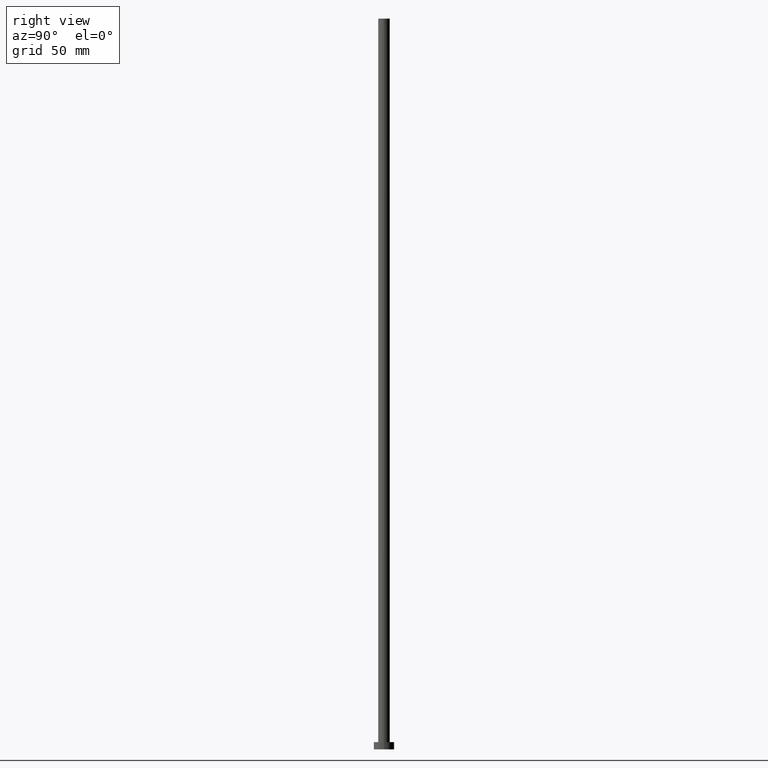
[diagram: clean part render]
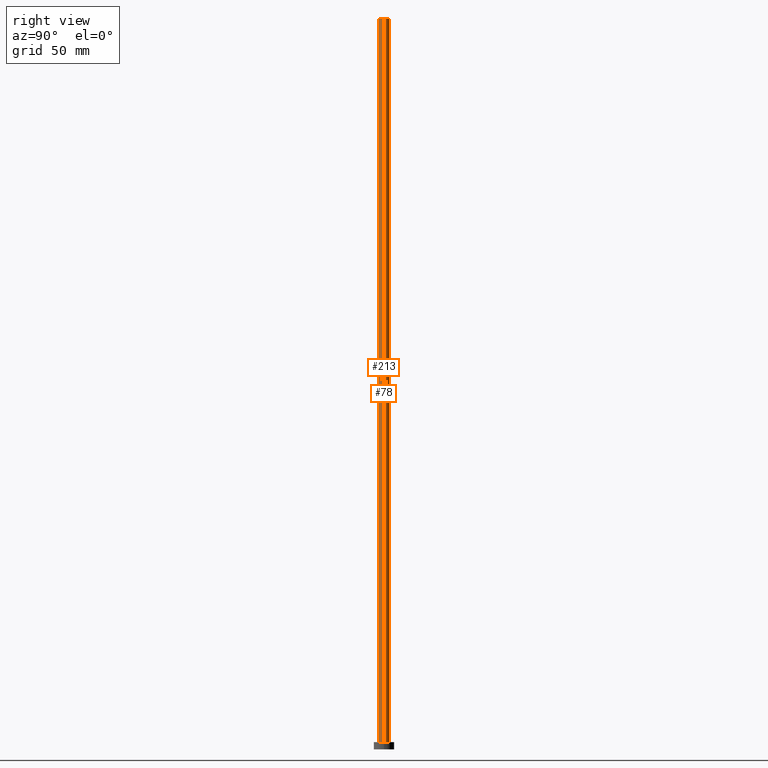
[diagram: same view with one multi-face feature highlighted, each face labeled with its STEP entity id]
A machine part, right view. The highlighted faces form ONE feature: a constant-radius fillet chain: 2 tangent blend faces with common blend radius 4 mm. The faces share edges in the B-rep.
Their STEP definitions:
[1] entity #78 (Cylinder):
#9 = VECTOR ( 'NONE', #28, 1000.000000000000000 ) ;
#11 = VERTEX_POINT ( 'NONE', #169 ) ;
#23 = CARTESIAN_POINT ( 'NONE',  ( 0.000000000000000000, 0.000000000000000000, 5.000000000000000000 ) ) ;
#24 = EDGE_CURVE ( 'NONE', #192, #153, #99, .T. ) ;
#25 = FACE_OUTER_BOUND ( 'NONE', #135, .T. ) ;
#27 = CARTESIAN_POINT ( 'NONE',  ( -4.000000000000000000, 0.000000000000000000, 500.0000000000000000 ) ) ;
#28 = DIRECTION ( 'NONE',  ( -0.000000000000000000, -0.000000000000000000, -1.000000000000000000 ) ) ;
#29 = EDGE_CURVE ( 'NONE', #153, #11, #66, .T. ) ;
#32 = CARTESIAN_POINT ( 'NONE',  ( 4.000000000000000000, 4.898587196589412829E-16, 500.0000000000000000 ) ) ;
#33 = LINE ( 'NONE', #203, #9 ) ;
#45 = CARTESIAN_POINT ( 'NONE',  ( 0.000000000000000000, 0.000000000000000000, 500.0000000000000000 ) ) ;
#47 = DIRECTION ( 'NONE',  ( -1.000000000000000000, 0.000000000000000000, 0.000000000000000000 ) ) ;
#61 = AXIS2_PLACEMENT_3D ( 'NONE', #23, #174, #109 ) ;
#66 = CIRCLE ( 'NONE', #61, 4.000000000000000000 ) ;
#78 = ADVANCED_FACE ( 'NONE', ( #25 ), #97, .T. ) ;
#79 = DIRECTION ( 'NONE',  ( 0.000000000000000000, 0.000000000000000000, 1.000000000000000000 ) ) ;
#88 = AXIS2_PLACEMENT_3D ( 'NONE', #159, #79, #235 ) ;
#92 = CARTESIAN_POINT ( 'NONE',  ( 4.000000000000000000, 4.898587196589412829E-16, 500.0000000000000000 ) ) ;
#97 = CYLINDRICAL_SURFACE ( 'NONE', #237, 4.000000000000000000 ) ;
#99 = LINE ( 'NONE', #92, #206 ) ;
#109 = DIRECTION ( 'NONE',  ( 1.000000000000000000, 0.000000000000000000, 0.000000000000000000 ) ) ;
#135 = EDGE_LOOP ( 'NONE', ( #251, #232, #137, #212 ) ) ;
#137 = ORIENTED_EDGE ( 'NONE', *, *, #29, .T. ) ;
#141 = CARTESIAN_POINT ( 'NONE',  ( 4.000000000000000000, 4.898587196589412829E-16, 5.000000000000000000 ) ) ;
#153 = VERTEX_POINT ( 'NONE', #141 ) ;
#159 = CARTESIAN_POINT ( 'NONE',  ( 0.000000000000000000, 0.000000000000000000, 500.0000000000000000 ) ) ;
#169 = CARTESIAN_POINT ( 'NONE',  ( -4.000000000000000000, 0.000000000000000000, 5.000000000000000000 ) ) ;
#174 = DIRECTION ( 'NONE',  ( 0.000000000000000000, 0.000000000000000000, 1.000000000000000000 ) ) ;
#190 = DIRECTION ( 'NONE',  ( -0.000000000000000000, -0.000000000000000000, -1.000000000000000000 ) ) ;
#192 = VERTEX_POINT ( 'NONE', #32 ) ;
#203 = CARTESIAN_POINT ( 'NONE',  ( -4.000000000000000000, 0.000000000000000000, 500.0000000000000000 ) ) ;
#206 = VECTOR ( 'NONE', #245, 1000.000000000000000 ) ;
#212 = ORIENTED_EDGE ( 'NONE', *, *, #224, .F. ) ;
#224 = EDGE_CURVE ( 'NONE', #246, #11, #33, .T. ) ;
#232 = ORIENTED_EDGE ( 'NONE', *, *, #24, .T. ) ;
#235 = DIRECTION ( 'NONE',  ( 1.000000000000000000, 0.000000000000000000, 0.000000000000000000 ) ) ;
#237 = AXIS2_PLACEMENT_3D ( 'NONE', #45, #190, #47 ) ;
#244 = EDGE_CURVE ( 'NONE', #192, #246, #255, .T. ) ;
#245 = DIRECTION ( 'NONE',  ( -0.000000000000000000, -0.000000000000000000, -1.000000000000000000 ) ) ;
#246 = VERTEX_POINT ( 'NONE', #27 ) ;
#251 = ORIENTED_EDGE ( 'NONE', *, *, #244, .F. ) ;
#255 = CIRCLE ( 'NONE', #88, 4.000000000000000000 ) ;
[2] entity #213 (Cylinder):
#9 = VECTOR ( 'NONE', #28, 1000.000000000000000 ) ;
#11 = VERTEX_POINT ( 'NONE', #169 ) ;
#13 = AXIS2_PLACEMENT_3D ( 'NONE', #53, #178, #170 ) ;
#16 = EDGE_CURVE ( 'NONE', #246, #192, #21, .T. ) ;
#21 = CIRCLE ( 'NONE', #35, 4.000000000000000000 ) ;
#24 = EDGE_CURVE ( 'NONE', #192, #153, #99, .T. ) ;
#27 = CARTESIAN_POINT ( 'NONE',  ( -4.000000000000000000, 0.000000000000000000, 500.0000000000000000 ) ) ;
#28 = DIRECTION ( 'NONE',  ( -0.000000000000000000, -0.000000000000000000, -1.000000000000000000 ) ) ;
#32 = CARTESIAN_POINT ( 'NONE',  ( 4.000000000000000000, 4.898587196589412829E-16, 500.0000000000000000 ) ) ;
#33 = LINE ( 'NONE', #203, #9 ) ;
#35 = AXIS2_PLACEMENT_3D ( 'NONE', #204, #156, #113 ) ;
#36 = EDGE_CURVE ( 'NONE', #11, #153, #89, .T. ) ;
#50 = ORIENTED_EDGE ( 'NONE', *, *, #36, .T. ) ;
#53 = CARTESIAN_POINT ( 'NONE',  ( 0.000000000000000000, 0.000000000000000000, 5.000000000000000000 ) ) ;
#59 = DIRECTION ( 'NONE',  ( -0.000000000000000000, -0.000000000000000000, -1.000000000000000000 ) ) ;
#89 = CIRCLE ( 'NONE', #13, 4.000000000000000000 ) ;
#92 = CARTESIAN_POINT ( 'NONE',  ( 4.000000000000000000, 4.898587196589412829E-16, 500.0000000000000000 ) ) ;
#99 = LINE ( 'NONE', #92, #206 ) ;
#112 = ORIENTED_EDGE ( 'NONE', *, *, #24, .F. ) ;
#113 = DIRECTION ( 'NONE',  ( 1.000000000000000000, 0.000000000000000000, 0.000000000000000000 ) ) ;
#118 = AXIS2_PLACEMENT_3D ( 'NONE', #183, #59, #147 ) ;
#120 = FACE_OUTER_BOUND ( 'NONE', #243, .T. ) ;
#139 = ORIENTED_EDGE ( 'NONE', *, *, #224, .T. ) ;
#141 = CARTESIAN_POINT ( 'NONE',  ( 4.000000000000000000, 4.898587196589412829E-16, 5.000000000000000000 ) ) ;
#147 = DIRECTION ( 'NONE',  ( -1.000000000000000000, 0.000000000000000000, 0.000000000000000000 ) ) ;
#153 = VERTEX_POINT ( 'NONE', #141 ) ;
#156 = DIRECTION ( 'NONE',  ( 0.000000000000000000, 0.000000000000000000, 1.000000000000000000 ) ) ;
#169 = CARTESIAN_POINT ( 'NONE',  ( -4.000000000000000000, 0.000000000000000000, 5.000000000000000000 ) ) ;
#170 = DIRECTION ( 'NONE',  ( 1.000000000000000000, 0.000000000000000000, 0.000000000000000000 ) ) ;
#175 = ORIENTED_EDGE ( 'NONE', *, *, #16, .F. ) ;
#178 = DIRECTION ( 'NONE',  ( 0.000000000000000000, 0.000000000000000000, 1.000000000000000000 ) ) ;
#183 = CARTESIAN_POINT ( 'NONE',  ( 0.000000000000000000, 0.000000000000000000, 500.0000000000000000 ) ) ;
#192 = VERTEX_POINT ( 'NONE', #32 ) ;
#201 = CYLINDRICAL_SURFACE ( 'NONE', #118, 4.000000000000000000 ) ;
#203 = CARTESIAN_POINT ( 'NONE',  ( -4.000000000000000000, 0.000000000000000000, 500.0000000000000000 ) ) ;
#204 = CARTESIAN_POINT ( 'NONE',  ( 0.000000000000000000, 0.000000000000000000, 500.0000000000000000 ) ) ;
#206 = VECTOR ( 'NONE', #245, 1000.000000000000000 ) ;
#213 = ADVANCED_FACE ( 'NONE', ( #120 ), #201, .T. ) ;
#224 = EDGE_CURVE ( 'NONE', #246, #11, #33, .T. ) ;
#243 = EDGE_LOOP ( 'NONE', ( #112, #175, #139, #50 ) ) ;
#245 = DIRECTION ( 'NONE',  ( -0.000000000000000000, -0.000000000000000000, -1.000000000000000000 ) ) ;
#246 = VERTEX_POINT ( 'NONE', #27 ) ;